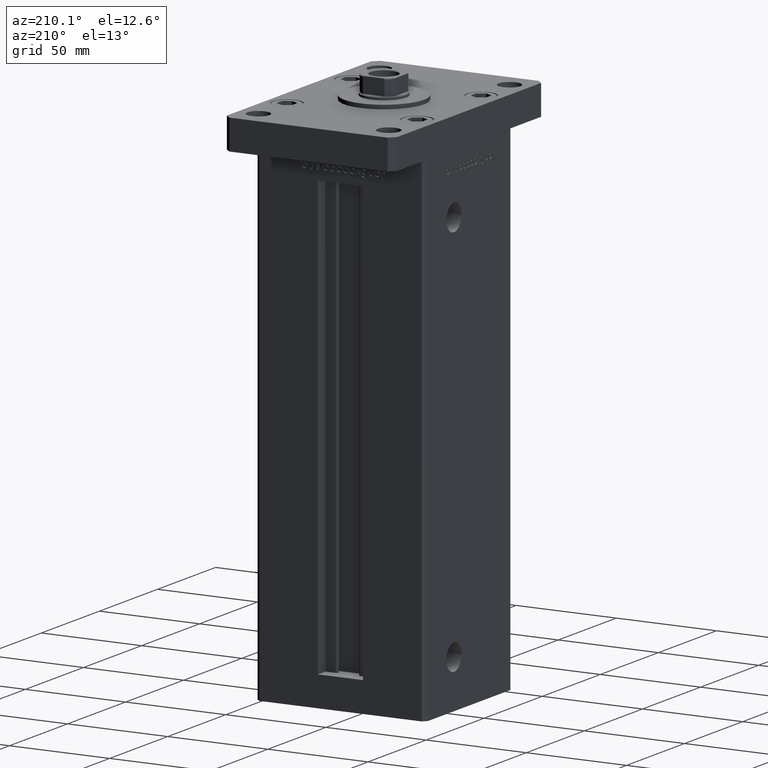
[diagram: clean part render]
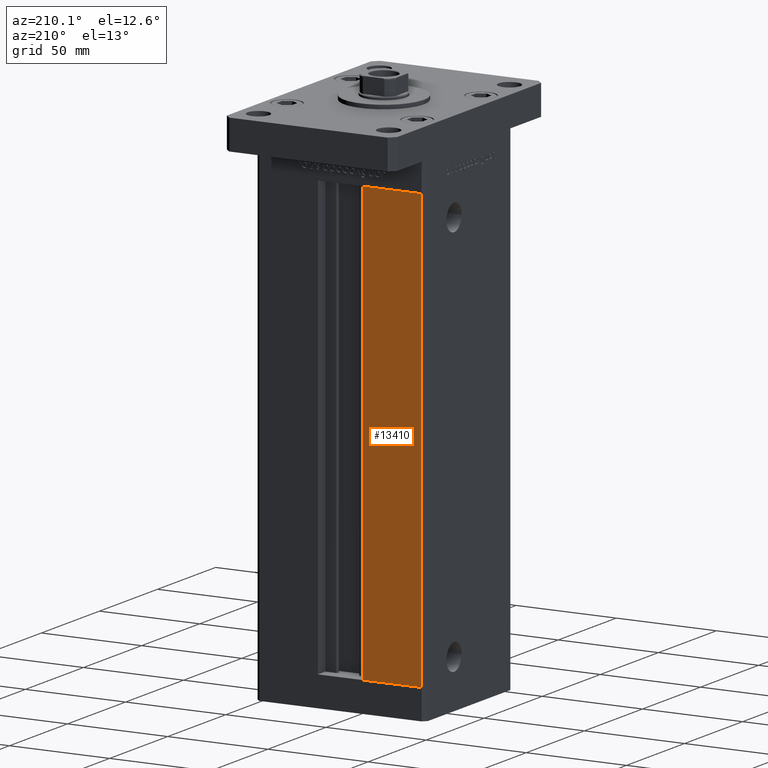
[diagram: same view with one face highlighted and labeled with its STEP entity id]
A machine part, auxiliary view. The second image highlights one B-rep face of the part: STEP entity #13410.
In plain terms, the highlighted planar face has unit normal (-0, -1, 0).
Its self-contained STEP definition (entity closure, byte-faithful):
#640 = CARTESIAN_POINT ( 'NONE',  ( -40.50000000000000000, 37.50000000000000711, 218.5000000000000000 ) ) ;
#1263 = DIRECTION ( 'NONE',  ( -0.000000000000000000, -0.000000000000000000, 1.000000000000000000 ) ) ;
#4130 = VERTEX_POINT ( 'NONE', #16516 ) ;
#5209 = CARTESIAN_POINT ( 'NONE',  ( -11.25000000000000000, 37.50000000000000000, 0.000000000000000000 ) ) ;
#9139 = LINE ( 'NONE', #29736, #27200 ) ;
#9313 = DIRECTION ( 'NONE',  ( 1.000000000000000000, 0.000000000000000000, 0.000000000000000000 ) ) ;
#9764 = CARTESIAN_POINT ( 'NONE',  ( -11.25000000000000000, 37.50000000000000000, 0.000000000000000000 ) ) ;
#10155 = VERTEX_POINT ( 'NONE', #5209 ) ;
#10611 = ORIENTED_EDGE ( 'NONE', *, *, #37545, .F. ) ;
#11250 = EDGE_CURVE ( 'NONE', #10155, #4130, #51211, .T. ) ;
#11447 = ORIENTED_EDGE ( 'NONE', *, *, #44900, .F. ) ;
#11828 = VECTOR ( 'NONE', #26554, 1000.000000000000000 ) ;
#12833 = LINE ( 'NONE', #42634, #37005 ) ;
#13410 = ADVANCED_FACE ( 'NONE', ( #36284 ), #35764, .F. ) ;
#16516 = CARTESIAN_POINT ( 'NONE',  ( -40.50000000000000000, 37.50000000000000711, 0.000000000000000000 ) ) ;
#20051 = VECTOR ( 'NONE', #20218, 1000.000000000000000 ) ;
#20218 = DIRECTION ( 'NONE',  ( -0.000000000000000000, -0.000000000000000000, -1.000000000000000000 ) ) ;
#21593 = EDGE_CURVE ( 'NONE', #22715, #25777, #12833, .T. ) ;
#22715 = VERTEX_POINT ( 'NONE', #640 ) ;
#25777 = VERTEX_POINT ( 'NONE', #46478 ) ;
#26554 = DIRECTION ( 'NONE',  ( -1.000000000000000000, 2.372271420139223331E-16, 0.000000000000000000 ) ) ;
#27078 = CARTESIAN_POINT ( 'NONE',  ( -11.25000000000000000, 37.50000000000000000, 218.5000000000000000 ) ) ;
#27200 = VECTOR ( 'NONE', #1263, 1000.000000000000000 ) ;
#29736 = CARTESIAN_POINT ( 'NONE',  ( -11.25000000000000000, 37.50000000000000000, 0.000000000000000000 ) ) ;
#34934 = ORIENTED_EDGE ( 'NONE', *, *, #11250, .T. ) ;
#35764 = PLANE ( 'NONE',  #50673 ) ;
#36284 = FACE_OUTER_BOUND ( 'NONE', #42636, .T. ) ;
#37005 = VECTOR ( 'NONE', #9313, 1000.000000000000000 ) ;
#37545 = EDGE_CURVE ( 'NONE', #22715, #4130, #45154, .T. ) ;
#42634 = CARTESIAN_POINT ( 'NONE',  ( -11.25000000000000000, 37.50000000000000000, 218.5000000000000000 ) ) ;
#42636 = EDGE_LOOP ( 'NONE', ( #47773, #11447, #34934, #10611 ) ) ;
#43627 = DIRECTION ( 'NONE',  ( 1.000000000000000000, -2.372271420139223824E-16, 0.000000000000000000 ) ) ;
#44900 = EDGE_CURVE ( 'NONE', #10155, #25777, #9139, .T. ) ;
#45154 = LINE ( 'NONE', #52998, #20051 ) ;
#46478 = CARTESIAN_POINT ( 'NONE',  ( -11.25000000000000000, 37.50000000000000000, 218.5000000000000000 ) ) ;
#47773 = ORIENTED_EDGE ( 'NONE', *, *, #21593, .T. ) ;
#50673 = AXIS2_PLACEMENT_3D ( 'NONE', #27078, #52279, #43627 ) ;
#51211 = LINE ( 'NONE', #9764, #11828 ) ;
#52279 = DIRECTION ( 'NONE',  ( -2.372271420139223824E-16, -1.000000000000000000, 0.000000000000000000 ) ) ;
#52998 = CARTESIAN_POINT ( 'NONE',  ( -40.50000000000000000, 37.50000000000000711, 218.5000000000000000 ) ) ;